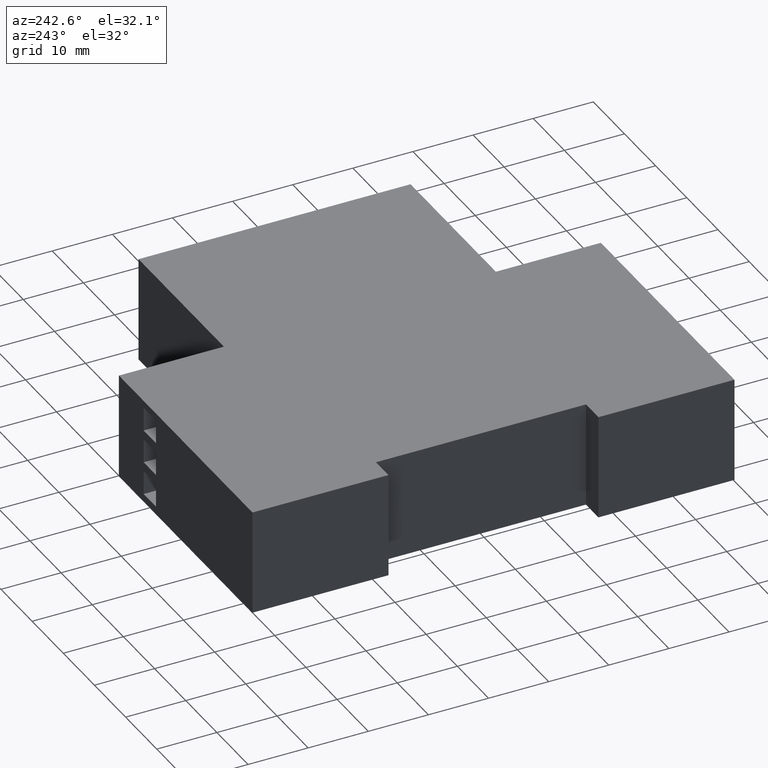
[diagram: clean part render]
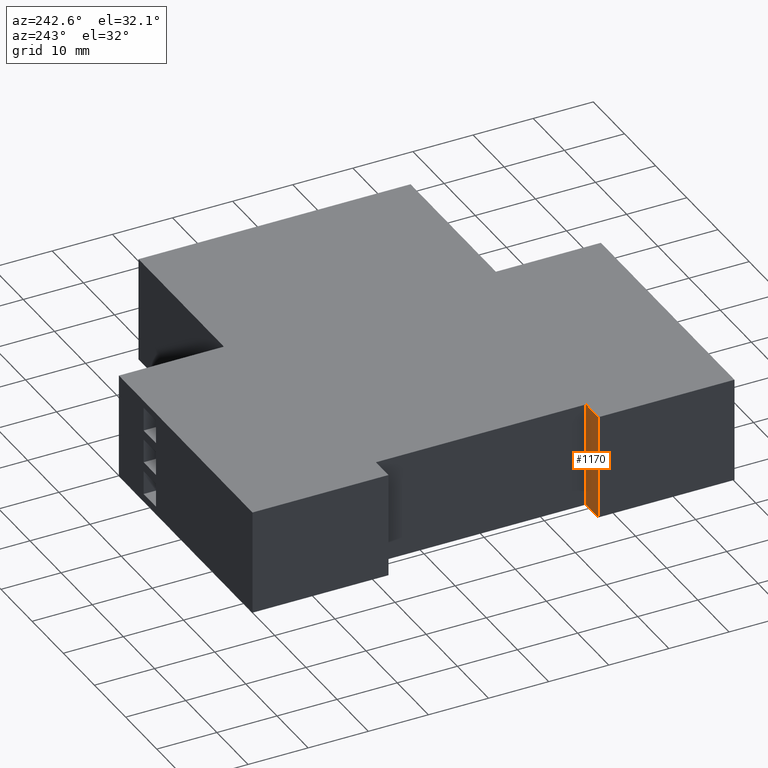
[diagram: same view with one face highlighted and labeled with its STEP entity id]
A machine part, auxiliary view. The second image highlights one B-rep face of the part: STEP entity #1170.
In plain terms, the highlighted planar face has unit normal (0, 1, 0).
Its self-contained STEP definition (entity closure, byte-faithful):
#98=DIRECTION('',(-1.E0,0.E0,0.E0));
#99=VECTOR('',#98,1.575E-1);
#100=CARTESIAN_POINT('',(-8.330434317903E-1,-2.217970613395E0,6.875E-1));
#101=LINE('',#100,#99);
#158=DIRECTION('',(-1.E0,0.E0,0.E0));
#159=VECTOR('',#158,1.575E-1);
#160=CARTESIAN_POINT('',(-8.330434317903E-1,-2.217970613395E0,0.E0));
#161=LINE('',#160,#159);
#162=DIRECTION('',(0.E0,0.E0,-1.E0));
#163=VECTOR('',#162,6.875E-1);
#164=CARTESIAN_POINT('',(-8.330434317903E-1,-2.217970613395E0,6.875E-1));
#165=LINE('',#164,#163);
#170=DIRECTION('',(0.E0,0.E0,-1.E0));
#171=VECTOR('',#170,6.875E-1);
#172=CARTESIAN_POINT('',(-9.905434317903E-1,-2.217970613395E0,6.875E-1));
#173=LINE('',#172,#171);
#894=CARTESIAN_POINT('',(-9.905434317903E-1,-2.217970613395E0,6.875E-1));
#895=VERTEX_POINT('',#894);
#896=CARTESIAN_POINT('',(-9.905434317903E-1,-2.217970613395E0,0.E0));
#897=VERTEX_POINT('',#896);
#898=CARTESIAN_POINT('',(-8.330434317903E-1,-2.217970613395E0,6.875E-1));
#899=VERTEX_POINT('',#898);
#900=CARTESIAN_POINT('',(-8.330434317903E-1,-2.217970613395E0,0.E0));
#901=VERTEX_POINT('',#900);
#1158=CARTESIAN_POINT('',(-9.905434317903E-1,-2.217970613395E0,0.E0));
#1159=DIRECTION('',(0.E0,1.E0,0.E0));
#1160=DIRECTION('',(0.E0,0.E0,1.E0));
#1161=AXIS2_PLACEMENT_3D('',#1158,#1159,#1160);
#1162=PLANE('',#1161);
#1163=ORIENTED_EDGE('',*,*,#1019,.T.);
#1165=ORIENTED_EDGE('',*,*,#1164,.T.);
#1166=ORIENTED_EDGE('',*,*,#1059,.F.);
#1167=ORIENTED_EDGE('',*,*,#1151,.F.);
#1168=EDGE_LOOP('',(#1163,#1165,#1166,#1167));
#1169=FACE_OUTER_BOUND('',#1168,.F.);
#1170=ADVANCED_FACE('',(#1169),#1162,.T.);
#1019=EDGE_CURVE('',#899,#895,#101,.T.);
#1059=EDGE_CURVE('',#901,#897,#161,.T.);
#1151=EDGE_CURVE('',#899,#901,#165,.T.);
#1164=EDGE_CURVE('',#895,#897,#173,.T.);